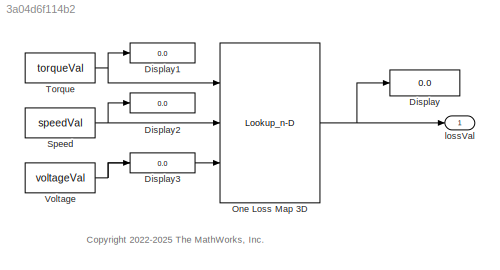
MODEL slx_3a04d6f114b2
KIND model
CONFIG AbsTol = auto
CONFIG EnableMultiTasking = off
CONFIG FixedStep = auto
CONFIG MaxStep = auto
CONFIG MinStep = auto
CONFIG RelTol = 1e-3
CONFIG SampleTimeConstraint = Unconstrained
CONFIG SolverName = VariableStepAuto
CONFIG StartTime = 0.0
CONFIG StopTime = 10.0
BLOCK [Display] Display
  Decimation = 1
  Ports = [1]
BLOCK [Display] Display1
  Decimation = 1
  Ports = [1]
BLOCK [Display] Display2
  Decimation = 1
  Ports = [1]
BLOCK [Display] Display3
  Decimation = 1
  Ports = [1]
BLOCK [Lookup_n-D] One Loss Map 3D
  BreakpointsForDimension1 = xVec
  BreakpointsForDimension2 = yVec
  BreakpointsForDimension3 = zVec
  ExtrapMethod = Clip
  InputPortMap = u0,u1,u2
  InternalRulePriority = Speed
  NumberOfTableDimensions = 3
  Ports = [3, 1]
  RndMeth = Simplest
  Table = zgMat
  UseLastTableValue = on
BLOCK [Constant] Speed
  Value = speedVal
BLOCK [Constant] Torque
  Value = torqueVal
BLOCK [Constant] Voltage
  Value = voltageVal
BLOCK [Outport] lossVal
ANNOTATION (root): <copyright redacted>
NET One Loss Map 3D:1 -> Display:1, lossVal:1
NET Speed:1 -> Display2:1, One Loss Map 3D:2
NET Torque:1 -> Display1:1, One Loss Map 3D:1
NET Voltage:1 -> Display3:1, One Loss Map 3D:3
note: NET lines group one-source signal fan-out (src -> all destinations, sorted); 1:1 wires keep LINE
